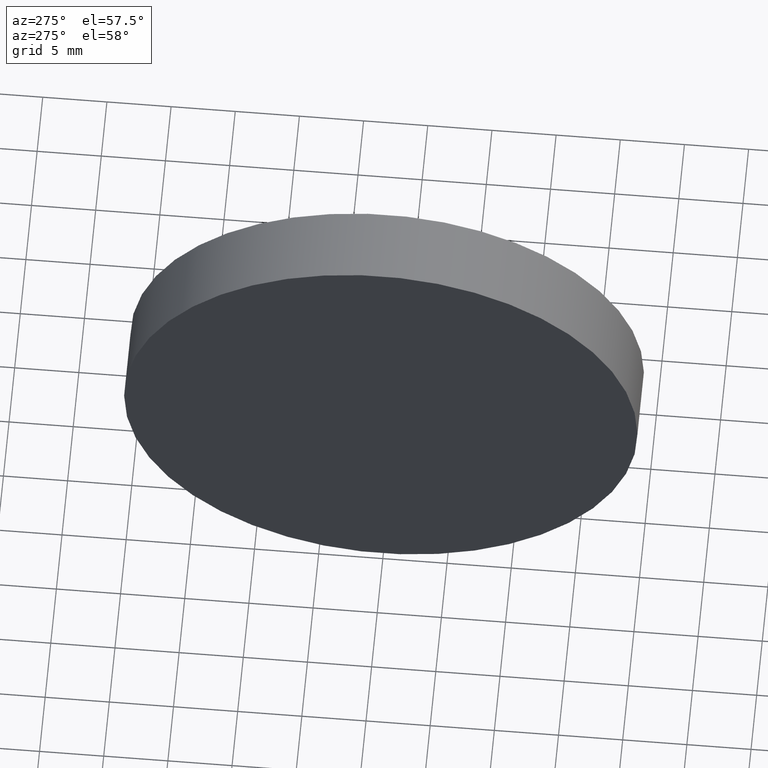
[diagram: clean part render]
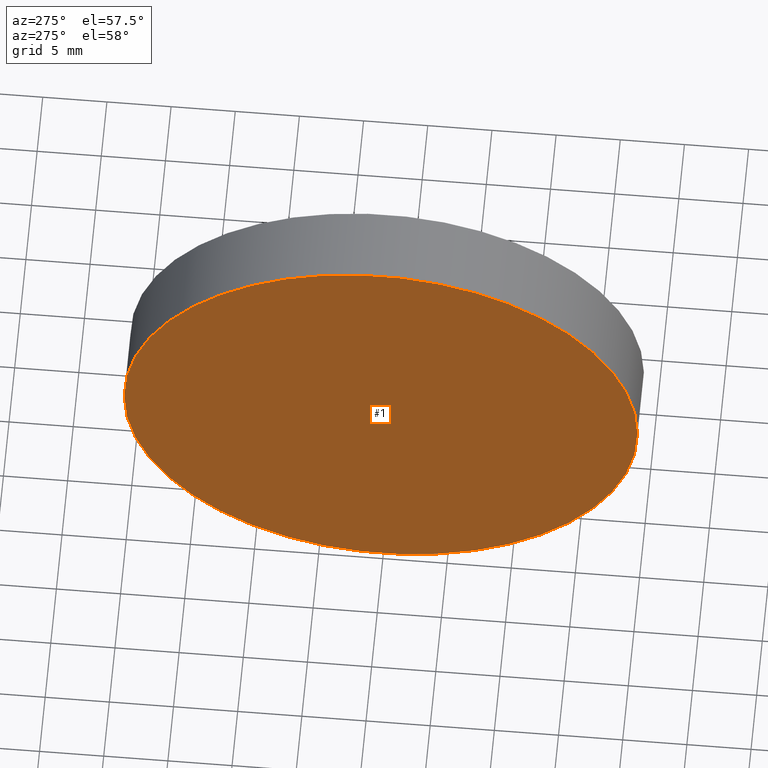
[diagram: same view with one face highlighted and labeled with its STEP entity id]
A machine part, auxiliary view. The second image highlights one B-rep face of the part: STEP entity #1.
In plain terms, the highlighted planar face has unit normal (1, -0, 0).
Its self-contained STEP definition (entity closure, byte-faithful):
#1 = ADVANCED_FACE ( 'NONE', ( #76 ), #99, .F. ) ;
#17 = DIRECTION ( 'NONE',  ( 6.488933942079480100E-016, 1.000000000000000000, 0.0000000000000000000 ) ) ;
#20 = DIRECTION ( 'NONE',  ( -1.000000000000000000, 6.488933942079480100E-016, -0.0000000000000000000 ) ) ;
#37 = DIRECTION ( 'NONE',  ( -1.000000000000000000, 6.488933942079480100E-016, -0.0000000000000000000 ) ) ;
#47 = CARTESIAN_POINT ( 'NONE',  ( 114.9754472601862300, 85.15745182658619700, 2.449293598294706500E-015 ) ) ;
#51 = CARTESIAN_POINT ( 'NONE',  ( 114.9754472601862000, 45.15745182658619000, 0.0000000000000000000 ) ) ;
#58 = CARTESIAN_POINT ( 'NONE',  ( 114.9754472601862300, 65.15745182658619700, 0.0000000000000000000 ) ) ;
#68 = EDGE_CURVE ( 'NONE', #144, #81, #92, .T. ) ;
#76 = FACE_OUTER_BOUND ( 'NONE', #157, .T. ) ;
#80 = DIRECTION ( 'NONE',  ( -6.938893903907227400E-016, -1.000000000000000000, 0.0000000000000000000 ) ) ;
#81 = VERTEX_POINT ( 'NONE', #47 ) ;
#85 = ORIENTED_EDGE ( 'NONE', *, *, #68, .T. ) ;
#92 = CIRCLE ( 'NONE', #113, 20.00000000000000400 ) ;
#95 = EDGE_CURVE ( 'NONE', #81, #144, #156, .T. ) ;
#99 = PLANE ( 'NONE',  #108 ) ;
#108 = AXIS2_PLACEMENT_3D ( 'NONE', #58, #152, #17 ) ;
#113 = AXIS2_PLACEMENT_3D ( 'NONE', #146, #20, #153 ) ;
#144 = VERTEX_POINT ( 'NONE', #51 ) ;
#145 = CARTESIAN_POINT ( 'NONE',  ( 114.9754472601862100, 65.15745182658619700, 0.0000000000000000000 ) ) ;
#146 = CARTESIAN_POINT ( 'NONE',  ( 114.9754472601862100, 65.15745182658619700, 0.0000000000000000000 ) ) ;
#150 = ORIENTED_EDGE ( 'NONE', *, *, #95, .T. ) ;
#152 = DIRECTION ( 'NONE',  ( 1.000000000000000000, -6.488933942079480100E-016, 0.0000000000000000000 ) ) ;
#153 = DIRECTION ( 'NONE',  ( -6.938893903907227400E-016, -1.000000000000000000, 0.0000000000000000000 ) ) ;
#156 = CIRCLE ( 'NONE', #160, 20.00000000000000400 ) ;
#157 = EDGE_LOOP ( 'NONE', ( #85, #150 ) ) ;
#160 = AXIS2_PLACEMENT_3D ( 'NONE', #145, #37, #80 ) ;